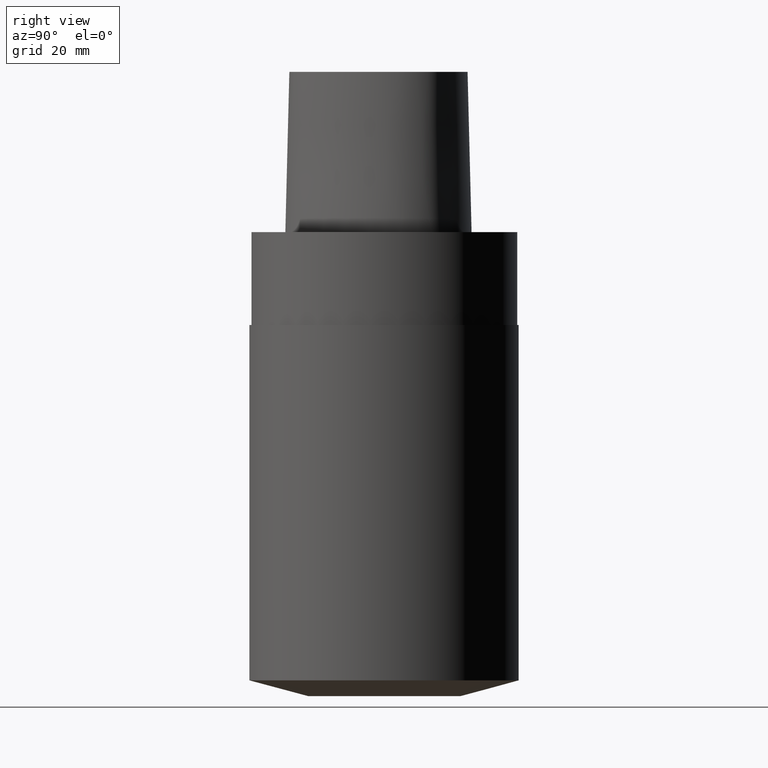
[diagram: clean part render]
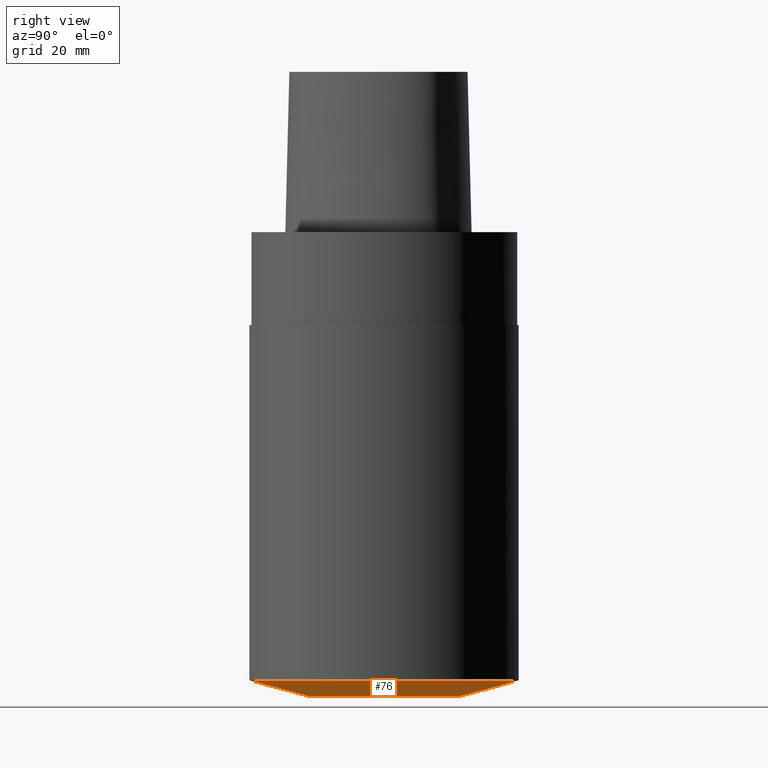
[diagram: same view with one face highlighted and labeled with its STEP entity id]
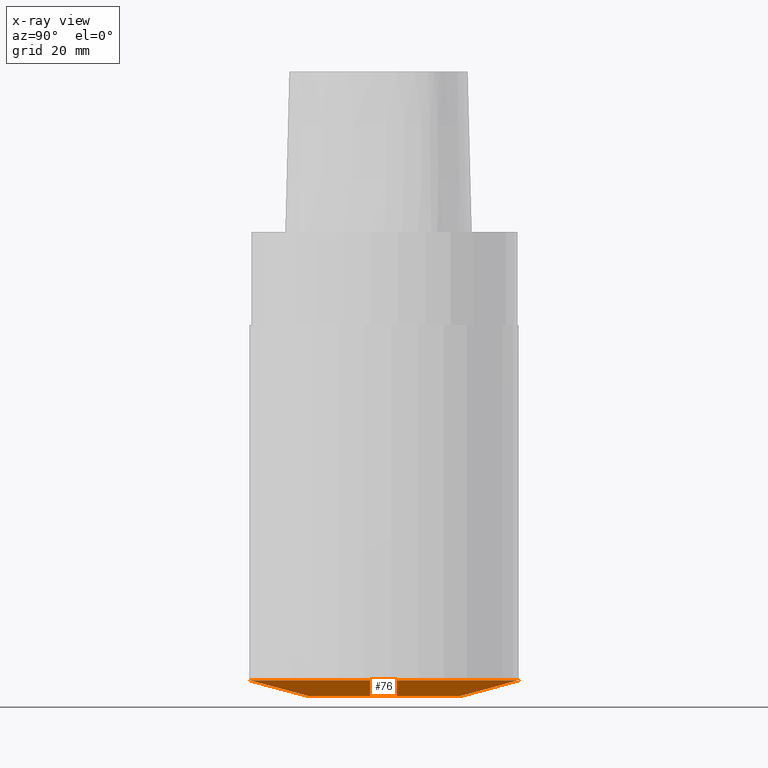
[diagram: x-ray of the same camera — body ghosted, the highlighted face saturated]
A machine part, right view. The second image highlights one B-rep face of the part: STEP entity #76.
The next image is the same camera in x-ray: the body ghosted, the highlighted face saturated — about 0% of this face is hidden behind the body in this view.
In plain terms, the highlighted conical surface has half-angle 75 deg.
Its self-contained STEP definition (entity closure, byte-faithful):
#76=ADVANCED_FACE('',(#89,#90),#91,.T.);
#89=FACE_BOUND('',#114,.T.);
#90=FACE_BOUND('',#115,.T.);
#91=CONICAL_SURFACE('',#116,25.0000000010224,1.30899693726243);
#114=EDGE_LOOP('',(#281));
#115=EDGE_LOOP('',(#282));
#116=AXIS2_PLACEMENT_3D('',#283,#284,#285);
#281=ORIENTED_EDGE('',*,*,#328,.T.);
#282=ORIENTED_EDGE('',*,*,#329,.F.);
#283=CARTESIAN_POINT('',(6.620707E-015,1.324141E-014,-108.124355651474));
#284=DIRECTION('',(-0.0,-0.0,1.0));
#285=DIRECTION('',(0.0,1.0,0.0));
#328=EDGE_CURVE('',#345,#345,#346,.T.);
#329=EDGE_CURVE('',#347,#347,#348,.T.);
#345=VERTEX_POINT('',#428);
#346=CIRCLE('',#429,32.0);
#347=VERTEX_POINT('',#430);
#348=CIRCLE('',#431,18.0000000020448);
#428=CARTESIAN_POINT('',(7.744013E-018,-32.0,-106.248711302947));
#429=AXIS2_PLACEMENT_3D('',#482,#483,#484);
#430=CARTESIAN_POINT('',(4.416416E-015,-18.0000000020448,-110.0));
#431=AXIS2_PLACEMENT_3D('',#485,#486,#487);
#482=CARTESIAN_POINT('',(6.505857E-015,1.301171E-014,-106.248711302947));
#483=DIRECTION('',(0.0,0.0,-1.0));
#484=DIRECTION('',(0.0,1.0,0.0));
#485=CARTESIAN_POINT('',(6.735557E-015,1.347111E-014,-110.0));
#486=DIRECTION('',(0.0,0.0,-1.0));
#487=DIRECTION('',(0.0,1.0,0.0));